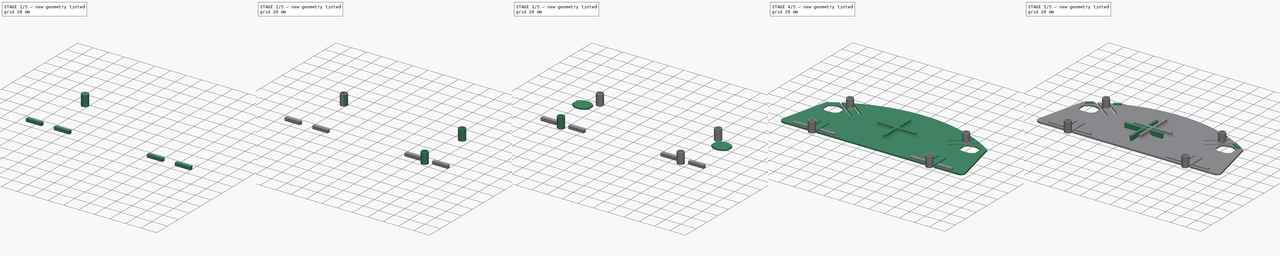
[diagram: build sequence overview — one tinted view per stage of 5, left to right]
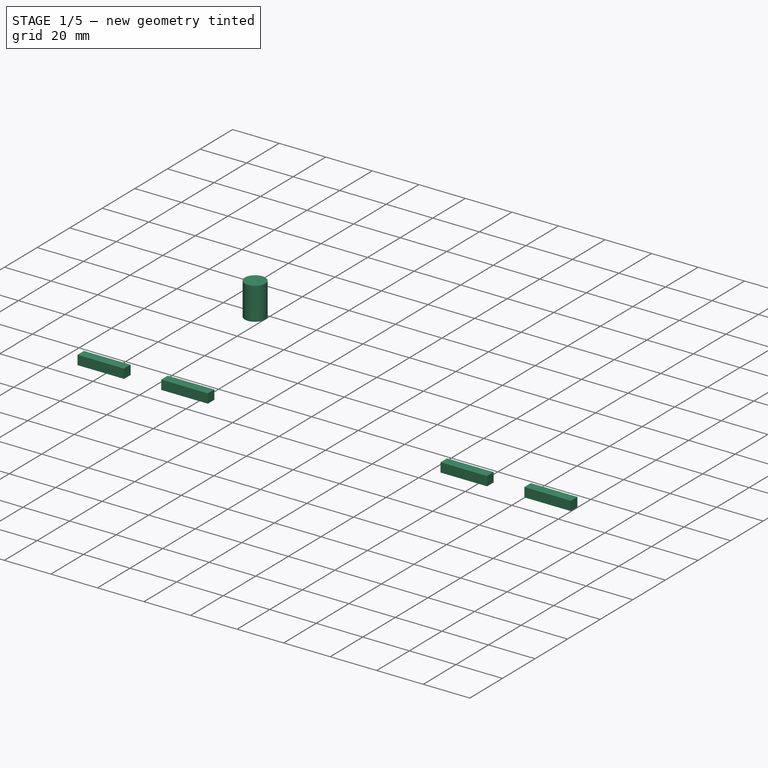
[diagram: stage 1 of 5 — iso view after this stage's code; geometry added in this stage tinted green]
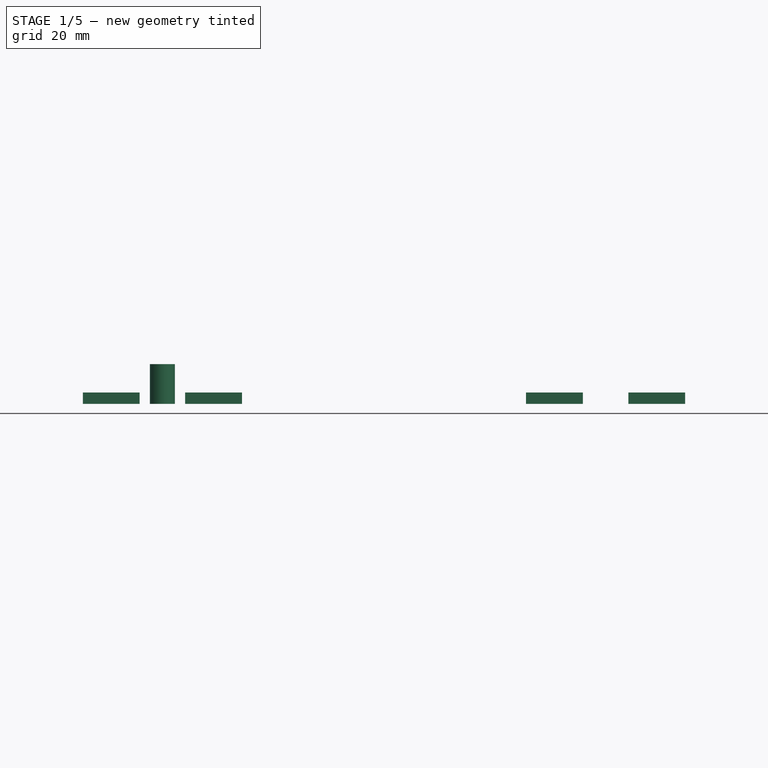
[diagram: stage 1 of 5 — front view after this stage's code; geometry added in this stage tinted green]
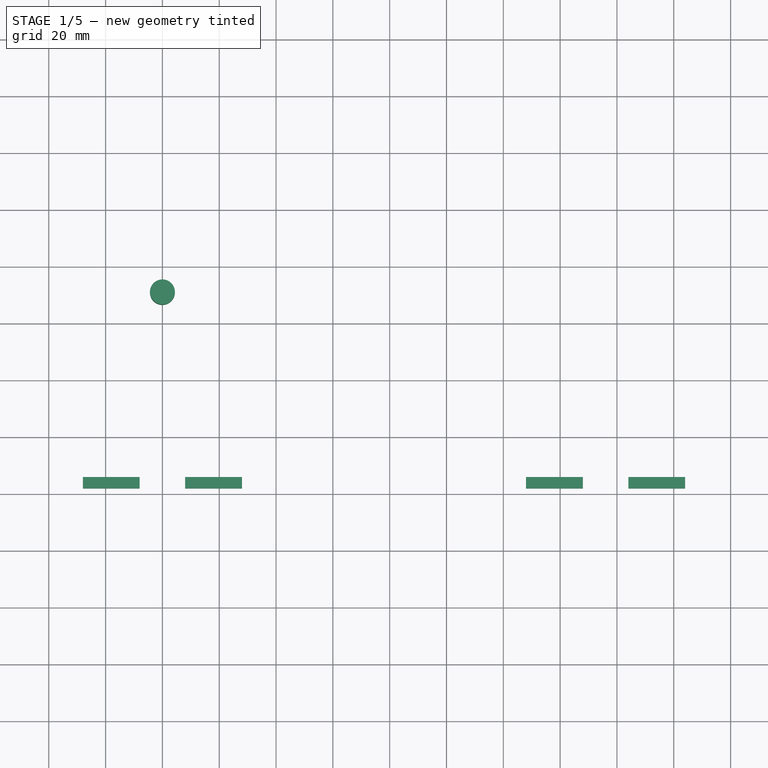
[diagram: stage 1 of 5 — top view after this stage's code; geometry added in this stage tinted green]
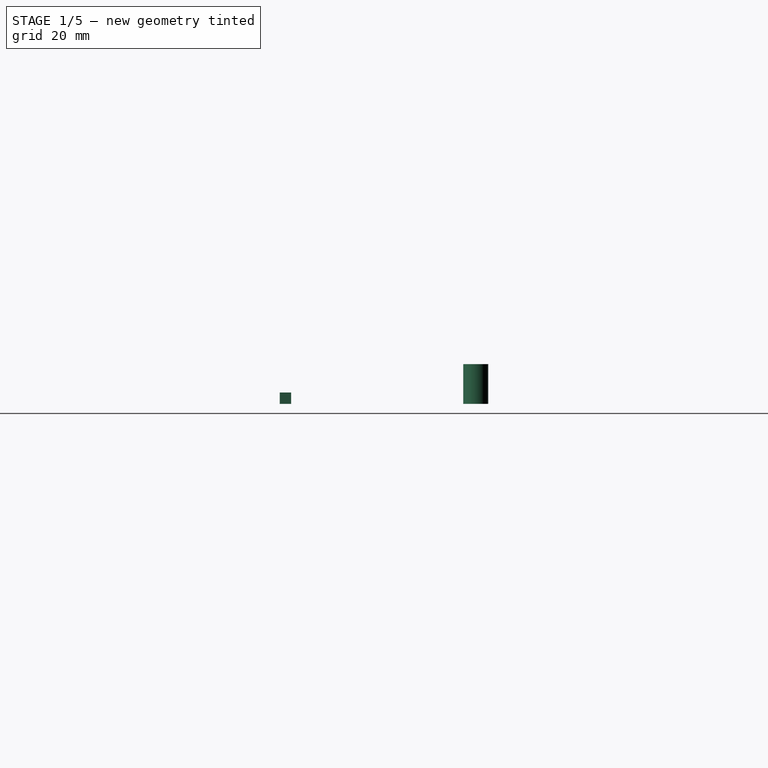
[diagram: stage 1 of 5 — right view after this stage's code; geometry added in this stage tinted green]
FCSTD DOCUMENT  (FreeCAD 0.16R5446 (Git))
Label: project_n
License: All rights reserved
LicenseURL: http://en.wikipedia.org/wiki/All_rights_reserved
objects: Part::Cylinder×8, Part::MultiFuse×6, Part::Cut×5, Sketcher::SketchObject×5, PartDesign::Fillet×5, Part::Extrusion×4, Part::Box×4, PartDesign::Pad×3, Part::Feature×1
note: 44 computed .brp shape members not serialized (recipe doc carries the construction recipe); baked Part::Feature solids carry a one-line shape summary decoded from their .brp

FEATURE [Part::Cylinder] Cylinder003
  Angle = 360
  Height = 14
  Placement = pos=(0,71,0) rot=(0,0,1;0rad)
  Radius = 4.4
FEATURE [Part::Cylinder] Cylinder007
  Angle = 360
  Height = 12
  Placement = pos=(0,71,2) rot=(0,0,1;0rad)
  Radius = 3
FEATURE [Part::Box] Box  label="Cube"
  Height = 4
  Length = 20
  Placement = pos=(-28,2,0) rot=(0,0,1;0rad)
  Width = 4
FEATURE [Part::Box] Box001  label="Cube001"
  Height = 4
  Length = 20
  Placement = pos=(8,2,0) rot=(0,0,1;0rad)
  Width = 4
FEATURE [Part::Box] Box002  label="Cube002"
  Height = 4
  Length = 20
  Placement = pos=(128,2,0) rot=(0,0,1;0rad)
  Width = 4
FEATURE [Part::Box] Box003  label="Cube003"
  Height = 4
  Length = 20
  Placement = pos=(164,2,0) rot=(0,0,1;0rad)
  Width = 4
FEATURE [Part::MultiFuse] Fusion004
  Shapes = -> [Box,Box002,Box003,Box001]
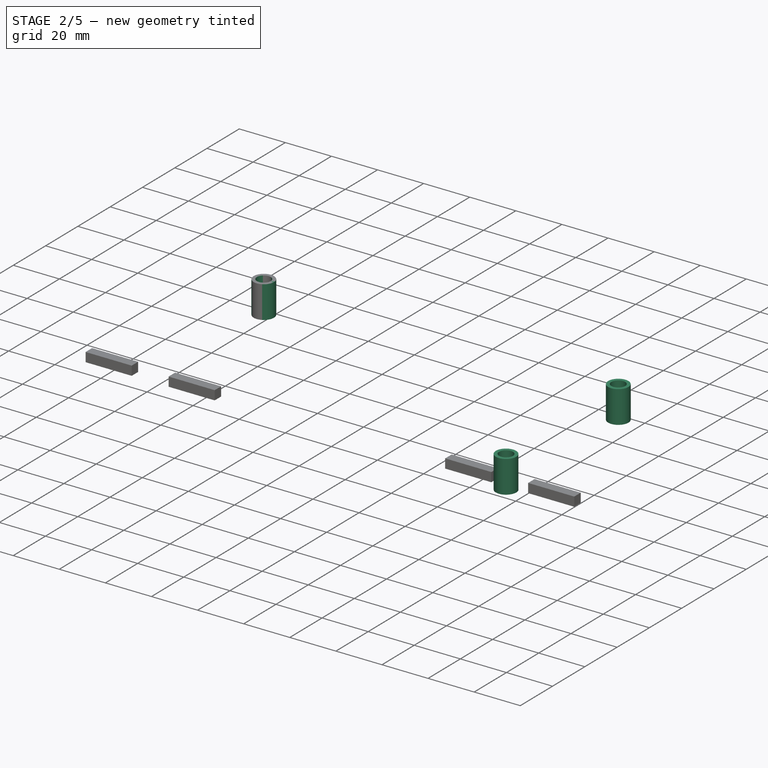
[diagram: stage 2 of 5 — iso view after this stage's code; geometry added in this stage tinted green]
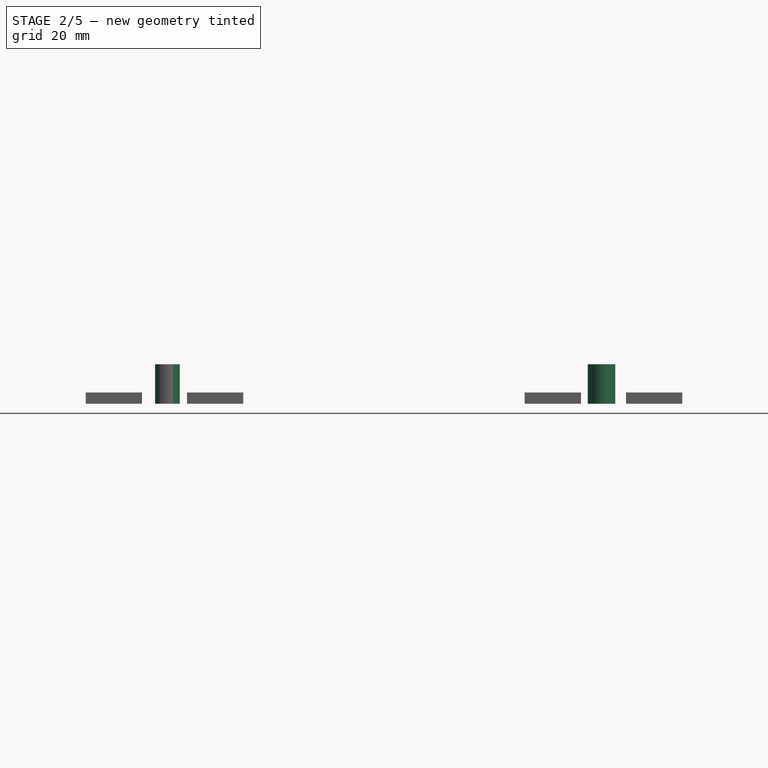
[diagram: stage 2 of 5 — front view after this stage's code; geometry added in this stage tinted green]
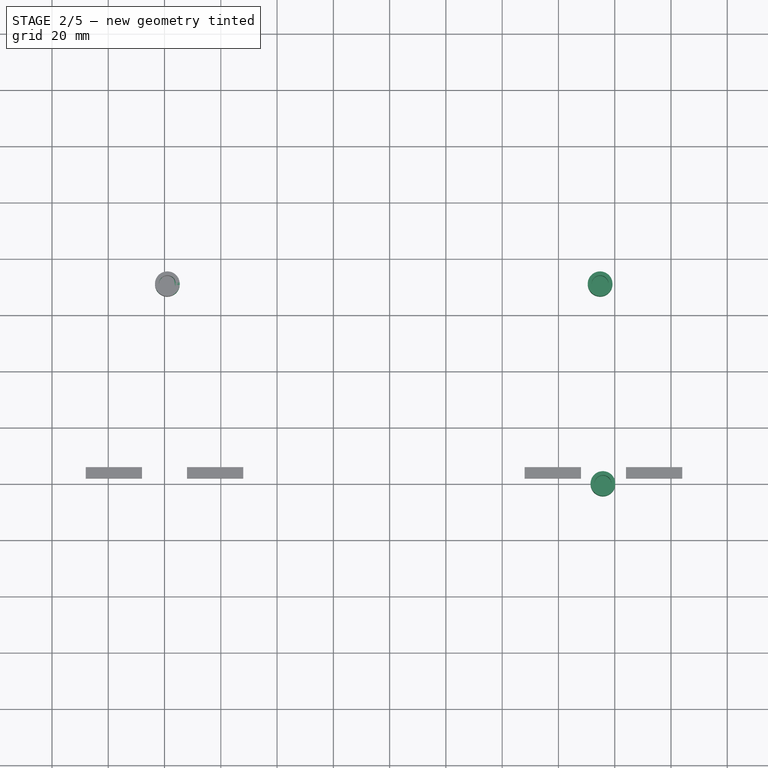
[diagram: stage 2 of 5 — top view after this stage's code; geometry added in this stage tinted green]
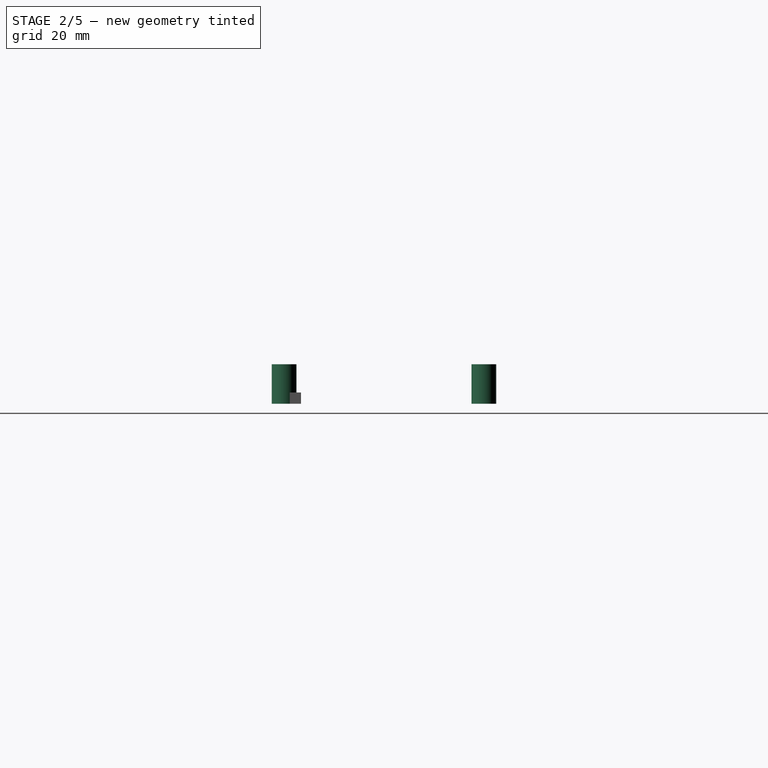
[diagram: stage 2 of 5 — right view after this stage's code; geometry added in this stage tinted green]
FEATURE [Part::Cylinder] Cylinder001
  Angle = 360
  Height = 14
  Placement = pos=(155.8,0,0) rot=(0,0,1;0rad)
  Radius = 4.4
FEATURE [Part::Cylinder] Cylinder002
  Angle = 360
  Height = 14
  Placement = pos=(155.8,71,0) rot=(0,0,1;0rad)
  Radius = 4.4
FEATURE [Part::Cylinder] Cylinder005
  Angle = 360
  Height = 12
  Placement = pos=(155.8,0,2) rot=(0,0,1;0rad)
  Radius = 3
FEATURE [Part::Cylinder] Cylinder006
  Angle = 360
  Height = 12
  Placement = pos=(155.8,71,2) rot=(0,0,1;0rad)
  Radius = 3
FEATURE [Part::Cut] Cut001
  Base = -> Cylinder001
  Tool = -> Cylinder005
FEATURE [Part::Cut] Cut002
  Base = -> Cylinder002
  Placement = pos=(-1,0,0) rot=(0,0,1;0rad)
  Tool = -> Cylinder006
FEATURE [Part::Cut] Cut003
  Base = -> Cylinder003
  Placement = pos=(1,0,0) rot=(0,0,1;0rad)
  Tool = -> Cylinder007
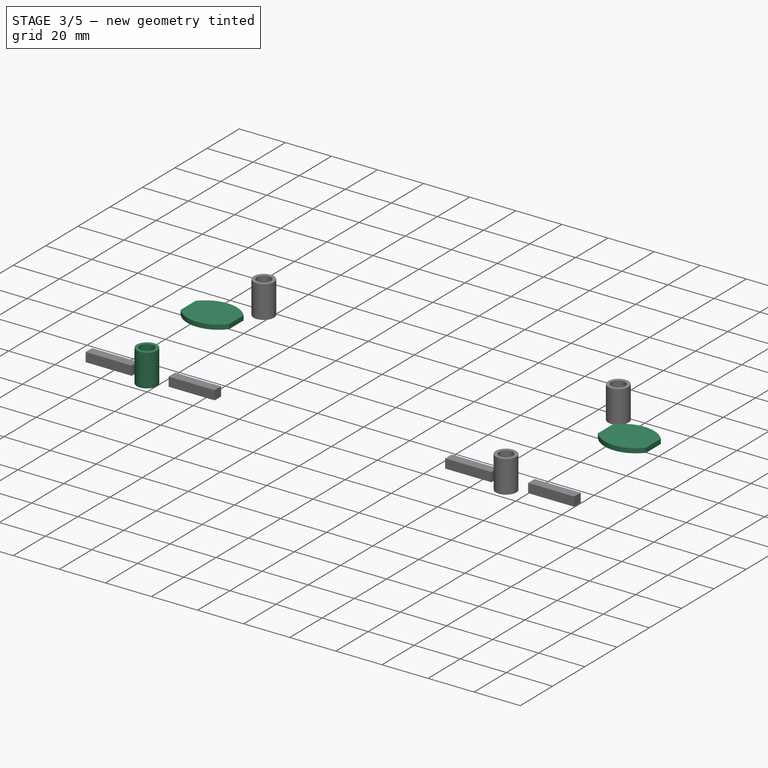
[diagram: stage 3 of 5 — iso view after this stage's code; geometry added in this stage tinted green]
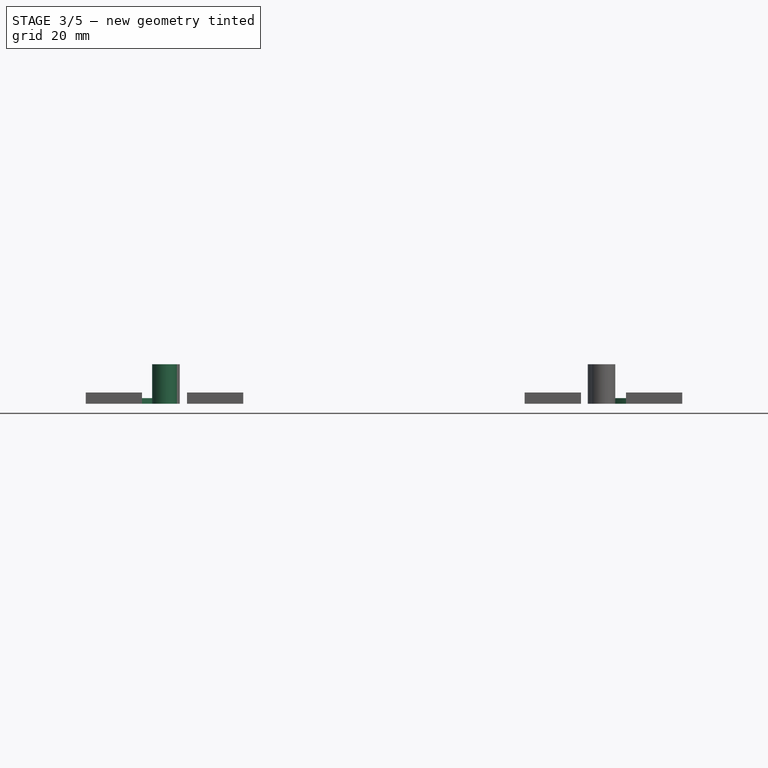
[diagram: stage 3 of 5 — front view after this stage's code; geometry added in this stage tinted green]
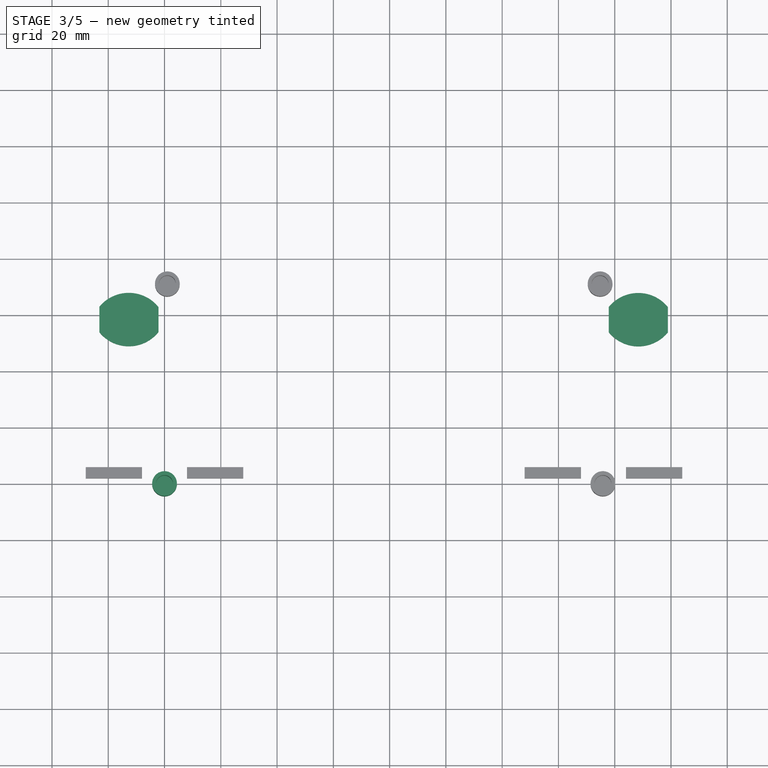
[diagram: stage 3 of 5 — top view after this stage's code; geometry added in this stage tinted green]
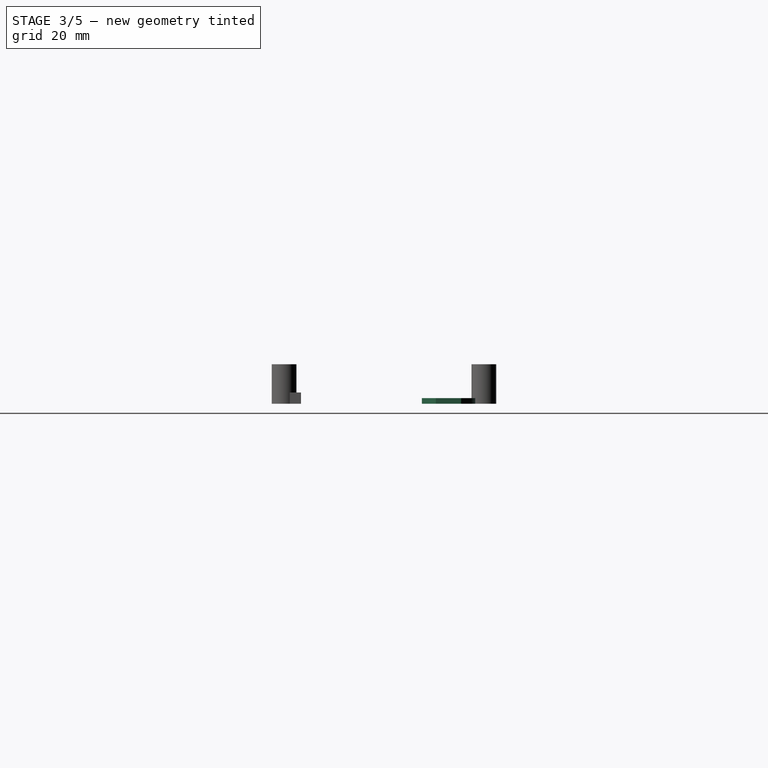
[diagram: stage 3 of 5 — right view after this stage's code; geometry added in this stage tinted green]
FEATURE [Part::Cylinder] Cylinder
  Angle = 360
  Height = 14
  Radius = 4.4
FEATURE [Part::Cylinder] Cylinder004
  Angle = 360
  Height = 12
  Placement = pos=(0,0,2) rot=(0,0,1;0rad)
  Radius = 3
FEATURE [Part::Cut] Cut
  Base = -> Cylinder
  Tool = -> Cylinder004
FEATURE [PartDesign::Pad] Pad001
  Length = 2
  Length2 = 100
  Placement = pos=(0,0,0) rot=(1,0,0;3.14159rad)
  Reversed = true
  Sketch = -> Sketch002
  Type = 0
FEATURE [PartDesign::Pad] Pad002
  Length = 2
  Length2 = 100
  Placement = pos=(0,0,0) rot=(1,0,0;3.14159rad)
  Reversed = true
  Sketch = -> Sketch003
  Type = 0
FEATURE [Part::MultiFuse] Fusion
  Shapes = -> [Pad001,Pad002]
FEATURE [Part::MultiFuse] Fusion001
  Shapes = -> [Cut,Cut001,Cut002,Cut003]
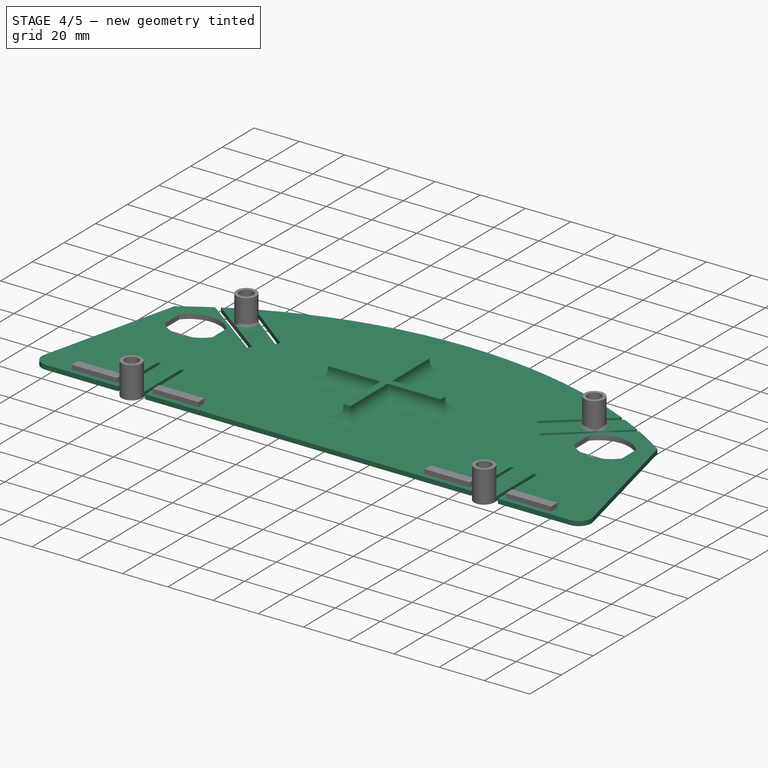
[diagram: stage 4 of 5 — iso view after this stage's code; geometry added in this stage tinted green]
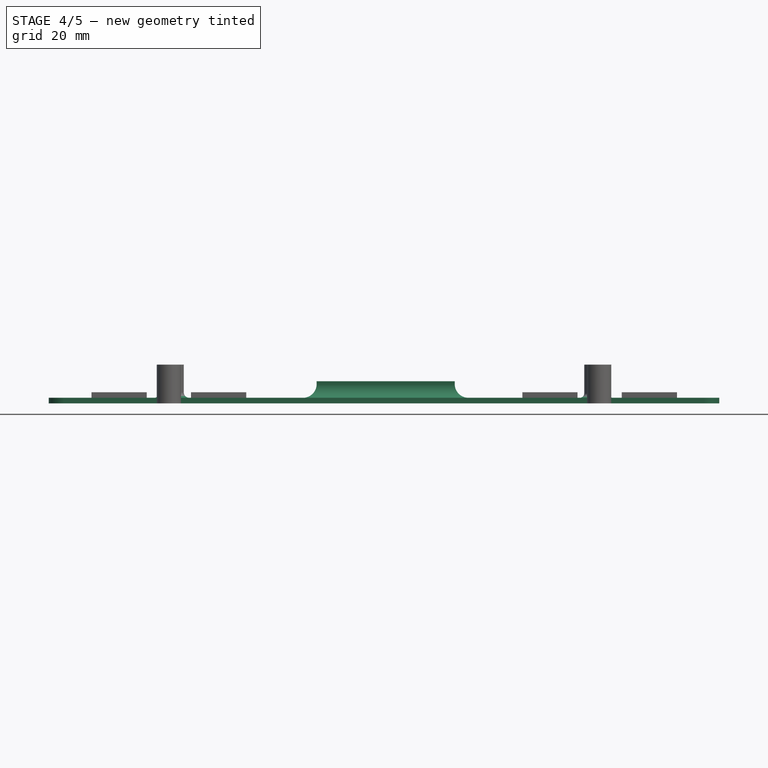
[diagram: stage 4 of 5 — front view after this stage's code; geometry added in this stage tinted green]
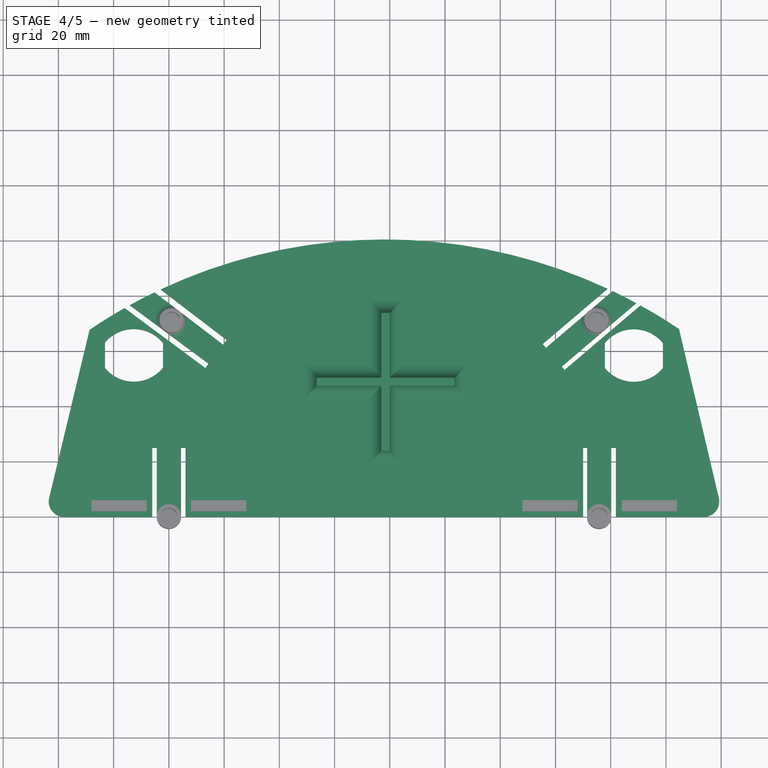
[diagram: stage 4 of 5 — top view after this stage's code; geometry added in this stage tinted green]
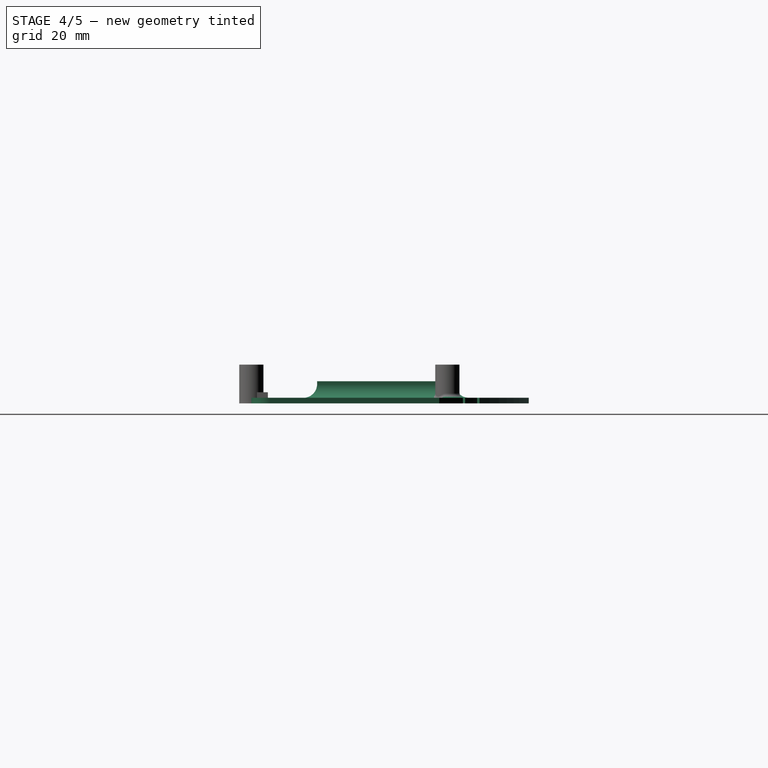
[diagram: stage 4 of 5 — right view after this stage's code; geometry added in this stage tinted green]
FEATURE [Sketcher::SketchObject] Sketch
  Placement = pos=(0,0,0) rot=(1,0,0;3.14159rad)
  sketch-geometry (38):
    g0: LineSegment StartX=-43.3507 StartY=-6.8712 StartZ=0 EndX=-28.7131 EndY=-67.7959 EndZ=0
    g1: LineSegment StartX=199.163 StartY=-6.8694 StartZ=0 EndX=184.746 EndY=-68.0609 EndZ=0
    g2: ArcOfCircle CenterX=-37.936 CenterY=-5.56776 CenterZ=0 NormalX=0 NormalY=0 NormalZ=1 Radius=5.56941 StartAngle=1.57075 EndAngle=3.37782
    g3: ArcOfCircle CenterX=193.736 CenterY=-5.5753 CenterZ=0 NormalX=0 NormalY=0 NormalZ=1 Radius=5.57903 StartAngle=6.0491 EndAngle=7.85398
    g4: ArcOfCircle CenterX=78.2135 CenterY=90.7587 CenterZ=0 NormalX=0 NormalY=0 NormalZ=1 Radius=191.24 StartAngle=4.11906 EndAngle=4.197
    g5: LineSegment StartX=-4.40208 StartY=0 StartZ=0 EndX=-4.40208 EndY=-25 EndZ=0
    g6: LineSegment StartX=-4.40208 StartY=-25 StartZ=0 EndX=-6 EndY=-25 EndZ=0
    g7: LineSegment StartX=-6 StartY=-25 StartZ=0 EndX=-6 EndY=0.000261594 EndZ=0
    g8: LineSegment StartX=4.40547 StartY=0 StartZ=0 EndX=4.40547 EndY=-25 EndZ=0
    g9: LineSegment StartX=4.40547 StartY=-25 StartZ=0 EndX=6 EndY=-25 EndZ=0
    g10: LineSegment StartX=6 StartY=-25 StartZ=0 EndX=6 EndY=0.000143702 EndZ=0
    g11: LineSegment StartX=-6 StartY=0.000261594 StartZ=0 EndX=-37.9357 EndY=0.00165396 EndZ=0
    g12: LineSegment StartX=151.442 StartY=0 StartZ=0 EndX=151.442 EndY=-25 EndZ=0
    g13: LineSegment StartX=151.442 StartY=-25 StartZ=0 EndX=150 EndY=-25 EndZ=0
    g14: LineSegment StartX=150 StartY=-25 StartZ=0 EndX=150 EndY=0.00359255 EndZ=0
    g15: LineSegment StartX=160.216 StartY=0 StartZ=0 EndX=160.216 EndY=-25 EndZ=0
    g16: LineSegment StartX=160.216 StartY=-25 StartZ=0 EndX=161.882 EndY=-25 EndZ=0
    g17: LineSegment StartX=161.882 StartY=-25 StartZ=0 EndX=161.882 EndY=0.00373137 EndZ=0
    g18: LineSegment StartX=150 StartY=0.00359255 StartZ=0 EndX=6 EndY=0.000143702 EndZ=0
    g19: LineSegment StartX=161.882 StartY=0.00373137 StartZ=0 EndX=193.736 EndY=0.00373137 EndZ=0
    g20: LineSegment StartX=-14.2083 StartY=-76.6662 StartZ=0 EndX=14.3393 EndY=-55.4777 EndZ=0
    g21: LineSegment StartX=-16.0434 StartY=-75.64 StartZ=0 EndX=13.1986 EndY=-53.9388 EndZ=0
    g22: LineSegment StartX=13.1986 StartY=-53.9388 StartZ=0 EndX=14.3393 EndY=-55.4777 EndZ=0
    g23: LineSegment StartX=-5.18895 StartY=-81.3369 StartZ=0 EndX=19.6475 EndY=-62.3862 EndZ=0
    g24: LineSegment StartX=19.6475 StartY=-62.3862 StartZ=0 EndX=20.9006 EndY=-64.0769 EndZ=0
    g25: LineSegment StartX=20.9006 StartY=-64.0769 StartZ=0 EndX=-3.03647 EndY=-82.3636 EndZ=0
    g26: ArcOfCircle CenterX=78.2135 CenterY=90.7587 CenterZ=0 NormalX=0 NormalY=0 NormalZ=1 Radius=191.24 StartAngle=4.208 EndAngle=4.26111
    g27: ArcOfCircle CenterX=78.2135 CenterY=90.7587 CenterZ=0 NormalX=0 NormalY=0 NormalZ=1 Radius=191.24 StartAngle=4.27358 EndAngle=5.14801
    g28: LineSegment StartX=169.291 StartY=-77.4014 StartZ=0 EndX=142.294 EndY=-54.4443 EndZ=0
    g29: LineSegment StartX=142.294 StartY=-54.4443 StartZ=0 EndX=143.278 EndY=-53.2272 EndZ=0
    g30: LineSegment StartX=143.278 StartY=-53.2272 StartZ=0 EndX=170.76 EndY=-76.5975 EndZ=0
    g31: LineSegment StartX=160.7 StartY=-81.7776 StartZ=0 EndX=136.551 EndY=-61.2415 EndZ=0
    g32: LineSegment StartX=136.551 StartY=-61.2415 StartZ=0 EndX=135.384 EndY=-62.6144 EndZ=0
    g33: LineSegment StartX=135.384 StartY=-62.6144 StartZ=0 EndX=158.911 EndY=-82.6217 EndZ=0
    g34: ArcOfCircle CenterX=78.2135 CenterY=90.7587 CenterZ=0 NormalX=0 NormalY=0 NormalZ=1 Radius=191.24 StartAngle=5.15835 EndAngle=5.20877
    g35: ArcOfCircle CenterX=78.2135 CenterY=90.7587 CenterZ=0 NormalX=0 NormalY=0 NormalZ=1 Radius=191.24 StartAngle=5.21752 EndAngle=5.30323
    g36: LineSegment StartX=151.442 StartY=0 StartZ=0 EndX=160.216 EndY=0 EndZ=0
    g37: LineSegment StartX=-4.40208 StartY=0 StartZ=0 EndX=4.40547 EndY=0 EndZ=0
  constraints (47):
    c: Coincident(g4,g0)
    c: Coincident(g35,g1)
    c: Coincident(g5,g6)
    c: Coincident(g6,g7)
    c: Coincident(g8,g9)
    c: Coincident(g9,g10)
    c: Coincident(g12,g13)
    c: Coincident(g13,g14)
    c: Coincident(g15,g16)
    c: Coincident(g16,g17)
    c: Coincident(g22,g20)
    c: Coincident(g24,g23)
    c: Coincident(g25,g24)
    c: Coincident(g21,g22)
    c: PointOnObject(g23,g4)
    c: PointOnObject(g25,g4)
    c: Coincident(g4,g21)
    c: Coincident(g26,g20)
    c: Coincident(g4,g26)
    c: Coincident(g26,g27)
    c: PointOnObject(g28,g27)
    c: Coincident(g29,g28)
    c: Coincident(g30,g29)
    c: PointOnObject(g30,g27)
    c: Coincident(g32,g31)
    c: Coincident(g27,g33)
    c: Coincident(g34,g31)
    c: Coincident(g27,g34)
    c: Coincident(g34,g35)
    c: Coincident(g10,g18)
    c: Coincident(g17,g19)
    c: Coincident(g32,g33)
    c: Coincident(g7,g11)
    c: Coincident(g18,g14)
    c: Coincident(g23,g26)
    c: Coincident(g25,g27)
    c: Coincident(g28,g34)
    c: Coincident(g30,g35)
    c: Coincident(g0,g2)
    c: Coincident(g3,g1)
    c: Coincident(g2,g11)
    c: Coincident(g3,g19)
    c: Coincident(g36,g12)
    c: Coincident(g36,g15)
    c: Coincident(g37,g5)
    c: Coincident(g37,g8)
    c: Horizontal(g37)
FEATURE [Sketcher::SketchObject] Sketch002
  Placement = pos=(0,0,0) rot=(1,0,0;3.14159rad)
  sketch-geometry (4):
    g0: ArcOfCircle CenterX=-12.686 CenterY=-62.4892 CenterZ=0 NormalX=0 NormalY=0 NormalZ=1 Radius=13.504 StartAngle=0.67483 EndAngle=2.45601
    g1: ArcOfCircle CenterX=-12.7054 CenterY=-54.429 CenterZ=0 NormalX=0 NormalY=0 NormalZ=1 Radius=13.5656 StartAngle=3.83496 EndAngle=5.60497
    g2: LineSegment StartX=-23.1388 StartY=-53.9395 StartZ=0 EndX=-23.1388 EndY=-63.0991 EndZ=0
    g3: LineSegment StartX=-2.14191 StartY=-54.0524 StartZ=0 EndX=-2.14191 EndY=-62.9401 EndZ=0
  constraints (6):
    c: Vertical(g2)
    c: Vertical(g3)
    c: Coincident(g0,g3)
    c: Coincident(g1,g3)
    c: Coincident(g0,g2)
    c: Coincident(g1,g2)
FEATURE [Sketcher::SketchObject] Sketch003
  Placement = pos=(0,0,0) rot=(1,0,0;3.14159rad)
  sketch-geometry (4):
    g0: ArcOfCircle CenterX=168.393 CenterY=-62.4863 CenterZ=0 NormalX=0 NormalY=0 NormalZ=1 Radius=13.5417 StartAngle=0.683489 EndAngle=2.45813
    g1: ArcOfCircle CenterX=168.376 CenterY=-54.4038 CenterZ=0 NormalX=0 NormalY=0 NormalZ=1 Radius=13.5402 StartAngle=3.82699 EndAngle=5.6019
    g2: LineSegment StartX=157.893 StartY=-53.935 StartZ=0 EndX=157.893 EndY=-62.9746 EndZ=0
    g3: LineSegment StartX=178.893 StartY=-53.9347 StartZ=0 EndX=178.893 EndY=-62.9313 EndZ=0
  constraints (9):
    c: Vertical(g2)
    c: Vertical(g3)
    c: Coincident(g0,g3)
    c: Coincident(g1,g3)
    c: Coincident(g0,g2)
    c: Coincident(g1,g2)
    c: DistanceX(g0,g0) = -21
    c: DistanceX(g0,g1) = -10.5176
    c: DistanceX(g1,g0) = -10.4999
FEATURE [PartDesign::Pad] Pad
  Length = 2
  Length2 = 100
  Placement = pos=(0,0,0) rot=(1,0,0;3.14159rad)
  Reversed = true
  Sketch = -> Sketch
  Type = 0
FEATURE [Part::Cut] Cut004
  Base = -> Pad
  Tool = -> Fusion
FEATURE [Part::MultiFuse] Fusion002
  Shapes = -> [Cut004,Fusion001]
FEATURE [PartDesign::Fillet] Fillet
  Base = -> Fusion002 [Edge106]
  Radius = 2
FEATURE [PartDesign::Fillet] Fillet001
  Base = -> Fillet [Edge35]
  Radius = 1.6
FEATURE [Part::Feature] Extrude001001  label="Extrude002"
  Placement = pos=(7,7,0) rot=(0,0,1;0rad)
  shape: bbox 50 x 50 x 8 mm, 14 faces (baked)
FEATURE [Part::MultiFuse] Fusion003
  Shapes = -> [Fillet001,Extrude001001]
FEATURE [PartDesign::Fillet] Fillet002
  Base = -> Fusion003 [Edge18,Edge16,Edge13,Edge34,Edge20,Edge36,Edge30,Edge32,Edge28,Edge26,Edge22,Edge24]
  Radius = 5
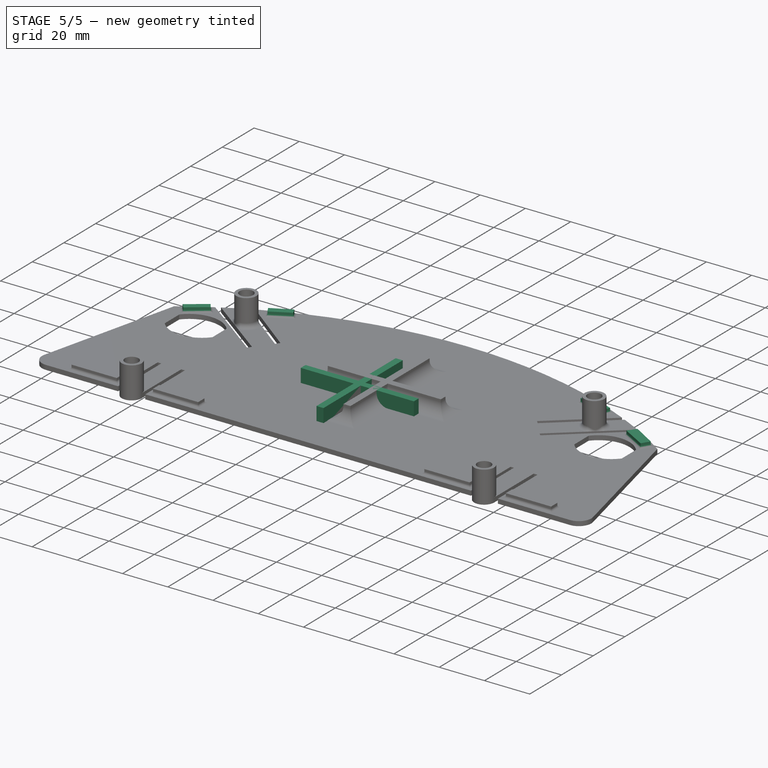
[diagram: stage 5 of 5 — iso view after this stage's code; geometry added in this stage tinted green]
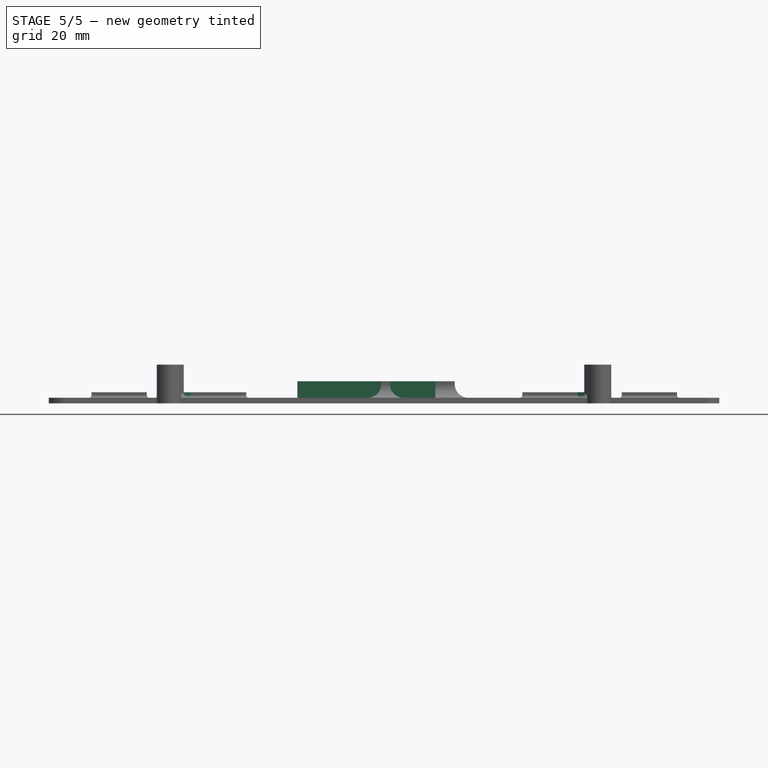
[diagram: stage 5 of 5 — front view after this stage's code; geometry added in this stage tinted green]
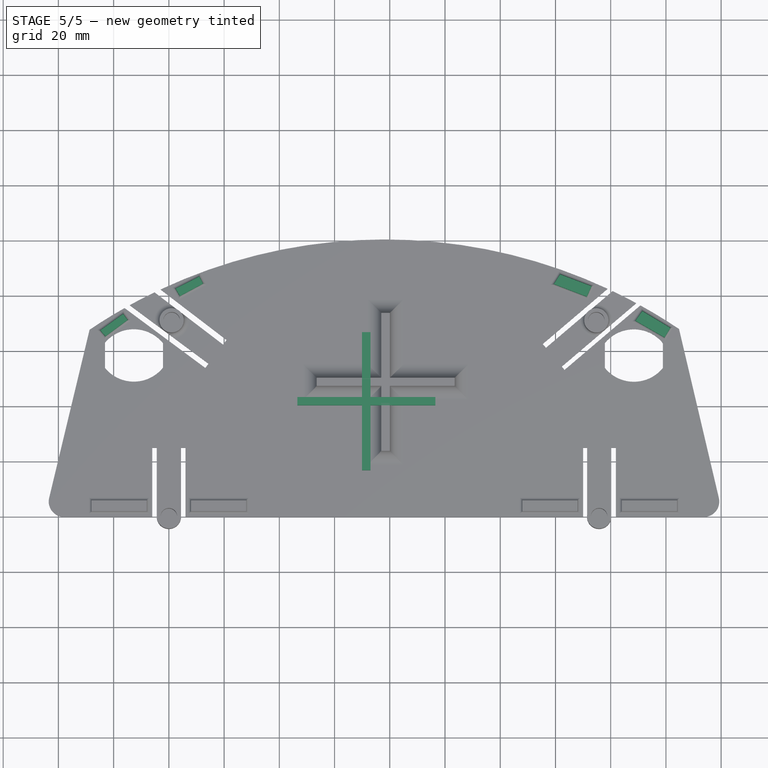
[diagram: stage 5 of 5 — top view after this stage's code; geometry added in this stage tinted green]
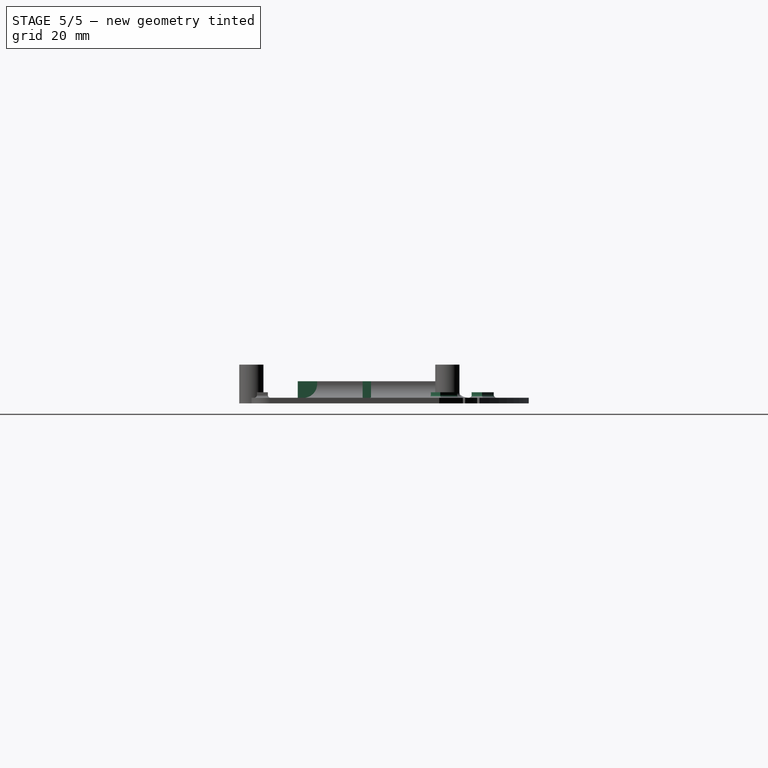
[diagram: stage 5 of 5 — right view after this stage's code; geometry added in this stage tinted green]
FEATURE [Sketcher::SketchObject] Sketch004
  sketch-geometry (12):
    g0: LineSegment StartX=69.9192 StartY=16.8224 StartZ=0 EndX=73.0169 EndY=16.8224 EndZ=0
    g1: LineSegment StartX=73.0169 StartY=16.8224 StartZ=0 EndX=73.0169 EndY=40.3224 EndZ=0
    g2: LineSegment StartX=73.0169 StartY=66.8224 StartZ=0 EndX=69.9192 EndY=66.8224 EndZ=0
    g3: LineSegment StartX=69.9192 StartY=66.8224 StartZ=0 EndX=69.9192 EndY=43.3224 EndZ=0
    g4: LineSegment StartX=46.5169 StartY=40.3224 StartZ=0 EndX=69.9192 EndY=40.3224 EndZ=0
    g5: LineSegment StartX=96.5169 StartY=40.3224 StartZ=0 EndX=96.5169 EndY=43.3224 EndZ=0
    g6: LineSegment StartX=96.5169 StartY=43.3224 StartZ=0 EndX=73.0169 EndY=43.3224 EndZ=0
    g7: LineSegment StartX=46.5169 StartY=43.3224 StartZ=0 EndX=46.5169 EndY=40.3224 EndZ=0
    g8: LineSegment StartX=69.9192 StartY=43.3224 StartZ=0 EndX=46.5169 EndY=43.3224 EndZ=0
    g9: LineSegment StartX=69.9192 StartY=40.3224 StartZ=0 EndX=69.9192 EndY=16.8224 EndZ=0
    g10: LineSegment StartX=73.0169 StartY=40.3224 StartZ=0 EndX=96.5169 EndY=40.3224 EndZ=0
    g11: LineSegment StartX=73.0169 StartY=43.3224 StartZ=0 EndX=73.0169 EndY=66.8224 EndZ=0
  constraints (23):
    c: Coincident(g0,g1)
    c: Coincident(g11,g2)
    c: Coincident(g2,g3)
    c: Coincident(g9,g0)
    c: Horizontal(g0)
    c: Horizontal(g2)
    c: Vertical(g1)
    c: Vertical(g3)
    c: Coincident(g10,g5)
    c: Coincident(g5,g6)
    c: Coincident(g8,g7)
    c: Coincident(g7,g4)
    c: Horizontal(g4)
    c: Horizontal(g6)
    c: Vertical(g5)
    c: Vertical(g7)
    c: PointOnObject(g3,g8)
    c: Tangent(g3,g9)
    c: Coincident(g4,g9)
    c: Tangent(g4,g10)
    c: Coincident(g1,g10)
    c: PointOnObject(g11,g6)
    c: Tangent(g1,g11)
FEATURE [Part::Extrusion] Extrude
  Base = -> Sketch004
  Dir = (0,0,8)
  Solid = true
FEATURE [Part::Extrusion] Extrude001
  Base = -> Sketch004
  Dir = (0,0,8)
  Solid = true
FEATURE [Sketcher::SketchObject] Sketch005
  Placement = pos=(0,0,2) rot=(0,0,1;0rad)
  Support = -> Fillet002 [Face9]
  sketch-geometry (16):
    g0: LineSegment StartX=2.45191 StartY=82.6259 StartZ=0 EndX=4 EndY=80 EndZ=0
    g1: LineSegment StartX=4 StartY=80 StartZ=0 EndX=12.3309 EndY=84.4808 EndZ=0
    g2: LineSegment StartX=12.3309 StartY=84.4808 StartZ=0 EndX=11 EndY=87 EndZ=0
    g3: LineSegment StartX=11 StartY=87 StartZ=0 EndX=2.45191 EndY=82.6259 EndZ=0
    g4: LineSegment StartX=-16.5551 StartY=73.4628 StartZ=0 EndX=-15 EndY=71.3095 EndZ=0
    g5: LineSegment StartX=-15 StartY=71.3095 StartZ=0 EndX=-23 EndY=65.4144 EndZ=0
    g6: LineSegment StartX=-23 StartY=65.4144 StartZ=0 EndX=-24.7974 EndY=67.5198 EndZ=0
    g7: LineSegment StartX=-24.7974 StartY=67.5198 StartZ=0 EndX=-16.5551 EndY=73.4628 EndZ=0
    g8: LineSegment StartX=153 StartY=83.5227 StartZ=0 EndX=151.305 EndY=79.7932 EndZ=0
    g9: LineSegment StartX=151.305 StartY=79.7932 StartZ=0 EndX=139.455 EndY=84.3047 EndZ=0
    g10: LineSegment StartX=139.455 StartY=84.3047 StartZ=0 EndX=141.68 EndY=87.7936 EndZ=0
    g11: LineSegment StartX=141.68 StartY=87.7936 StartZ=0 EndX=153 EndY=83.5227 EndZ=0
    g12: LineSegment StartX=171.457 StartY=74.4996 StartZ=0 EndX=169 EndY=71 EndZ=0
    g13: LineSegment StartX=169 StartY=71 StartZ=0 EndX=179.457 EndY=65 EndZ=0
    g14: LineSegment StartX=179.457 StartY=65 StartZ=0 EndX=181.562 EndY=68.424 EndZ=0
    g15: LineSegment StartX=181.562 StartY=68.424 StartZ=0 EndX=171.457 EndY=74.4996 EndZ=0
  constraints (16):
    c: Coincident(g0,g1)
    c: Coincident(g1,g2)
    c: Coincident(g2,g3)
    c: Coincident(g3,g0)
    c: Coincident(g4,g5)
    c: Coincident(g5,g6)
    c: Coincident(g6,g7)
    c: Coincident(g7,g4)
    c: Coincident(g8,g9)
    c: Coincident(g9,g10)
    c: Coincident(g10,g11)
    c: Coincident(g11,g8)
    c: Coincident(g12,g13)
    c: Coincident(g13,g14)
    c: Coincident(g14,g15)
    c: Coincident(g15,g12)
FEATURE [Part::Extrusion] Extrude001002
  Base = -> Sketch005
  Dir = (0,0,2)
  Solid = true
FEATURE [Part::Extrusion] Extrude001003
  Base = -> Sketch005
  Dir = (0,0,2)
  Solid = true
FEATURE [Part::MultiFuse] Fusion005
  Shapes = -> [Fillet002,Extrude001002,Fusion004]
FEATURE [PartDesign::Fillet] Fillet003
  Base = -> Fusion005 [Edge102,Edge100,Edge94,Edge92,Edge107,Edge89,Edge106,Edge88,Edge104,Edge105,Edge91,Edge90,Edge95,Edge93,Edge101,Edge103,Edge116,Edge119,Edge75,Edge78,Edge71,Edge73,Edge113,Edge115,Edge114,Edge117,Edge76,Edge118,Edge112,Edge72,Edge77]
  Radius = 2
FEATURE [PartDesign::Fillet] Fillet004
  Base = -> Fillet003 [Edge2]
  Radius = 2
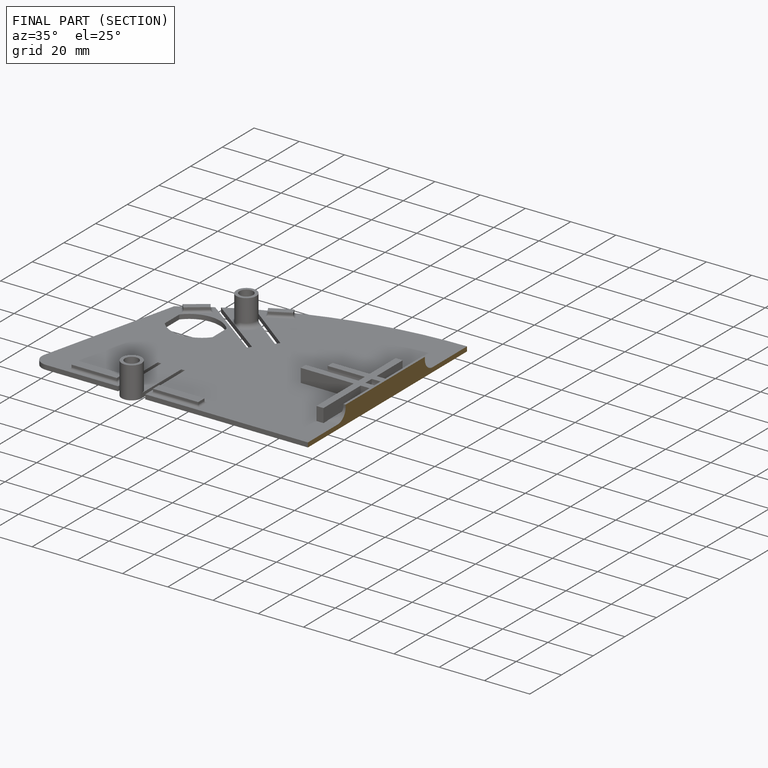
[diagram: finished part — half-section view (interior)]
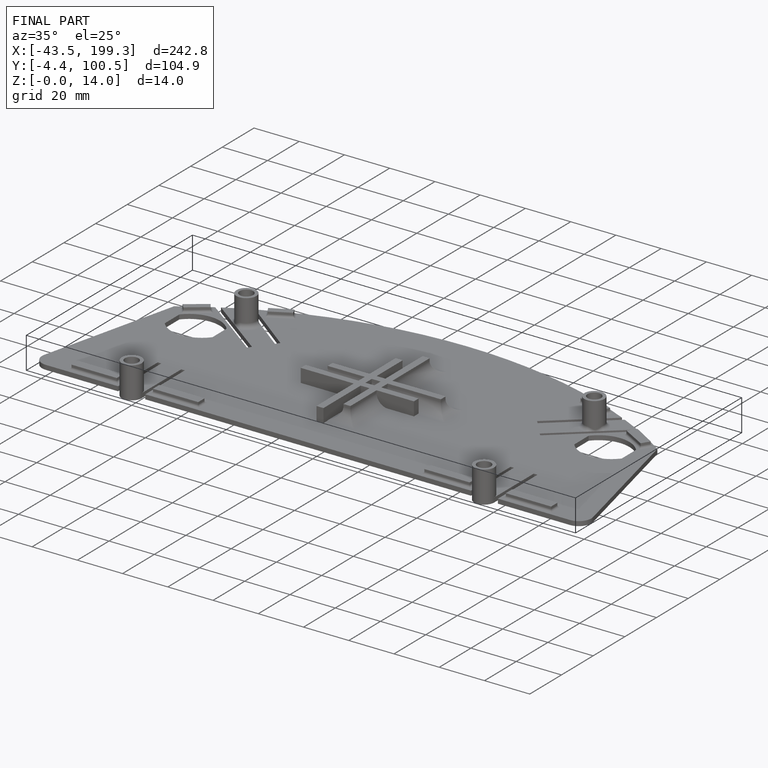
[diagram: finished part — iso view with bounding-box wireframe]
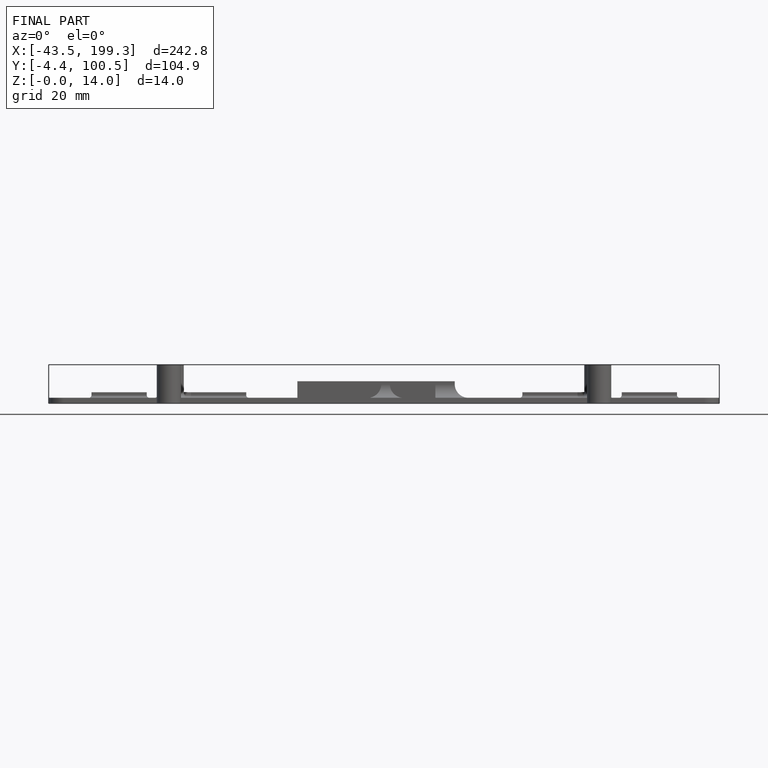
[diagram: finished part — front view with bounding-box wireframe]
